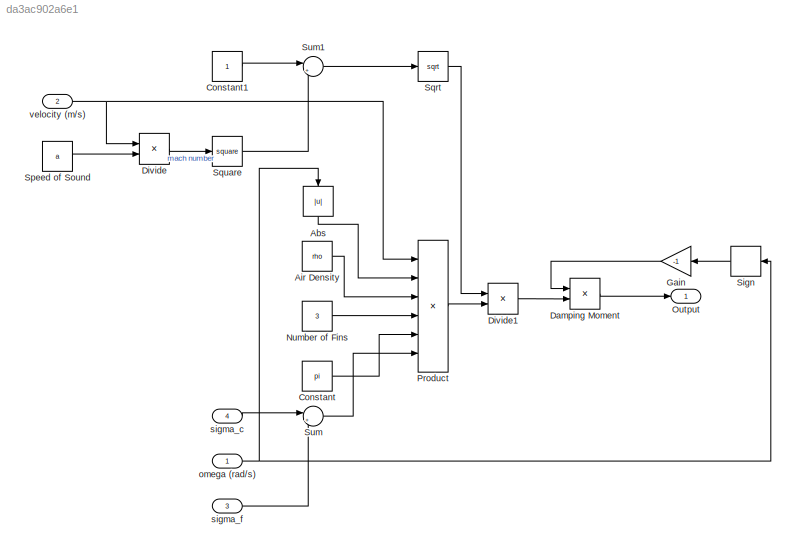
MODEL slx_da3ac902a6e1
KIND model
CONFIG AbsTol = auto
CONFIG EnableMultiTasking = off
CONFIG FixedStep = auto
CONFIG MaxStep = auto
CONFIG MinStep = auto
CONFIG RelTol = 1e-3
CONFIG SampleTimeConstraint = Unconstrained
CONFIG SolverName = VariableStepAuto
CONFIG StartTime = 0.0
CONFIG StopTime = 10.0
BLOCK [Abs] Abs
  NameLocation = left
  SaturateOnIntegerOverflow = off
BLOCK [Constant] Air Density
  Value = rho
BLOCK [Constant] Constant
  Value = pi
BLOCK [Constant] Constant1
BLOCK [Product] Damping Moment
BLOCK [Product] Divide
  Inputs = */
BLOCK [Product] Divide1
  Inputs = /*
BLOCK [Gain] Gain
  Gain = -1
BLOCK [Constant] Number of Fins
  Value = 3
BLOCK [Outport] Output
BLOCK [Product] Product
  Inputs = 6
BLOCK [Signum] Sign
BLOCK [Constant] Speed of Sound
  Value = a
BLOCK [Sqrt] Sqrt
BLOCK [Math] Square
  Operator = square
BLOCK [Sum] Sum
  Inputs = |++
BLOCK [Sum] Sum1
  Inputs = |+-
BLOCK [Inport] omega (rad//s)
BLOCK [Inport] sigma_c
  Port = 4
BLOCK [Inport] sigma_f
  Port = 3
BLOCK [Inport] velocity (m//s)
  Port = 2
LINE Abs:1 -> Product:2
LINE Air Density:1 -> Product:3
LINE Constant1:1 -> Sum1:1
LINE Constant:1 -> Product:5
LINE Damping Moment:1 -> Output:1
LINE Divide1:1 -> Damping Moment:2
LINE Divide:1 -> Square:1
LINE Gain:1 -> Damping Moment:1
LINE Number of Fins:1 -> Product:4
LINE Product:1 -> Divide1:2
LINE Sign:1 -> Gain:1
LINE Speed of Sound:1 -> Divide:2
LINE Sqrt:1 -> Divide1:1
LINE Square:1 -> Sum1:2
LINE Sum1:1 -> Sqrt:1
LINE Sum:1 -> Product:6
NET omega (rad//s):1 -> Abs:1, Sign:1
LINE sigma_c:1 -> Sum:1
LINE sigma_f:1 -> Sum:2
NET velocity (m//s):1 -> Divide:1, Product:1
note: NET lines group one-source signal fan-out (src -> all destinations, sorted); 1:1 wires keep LINE
